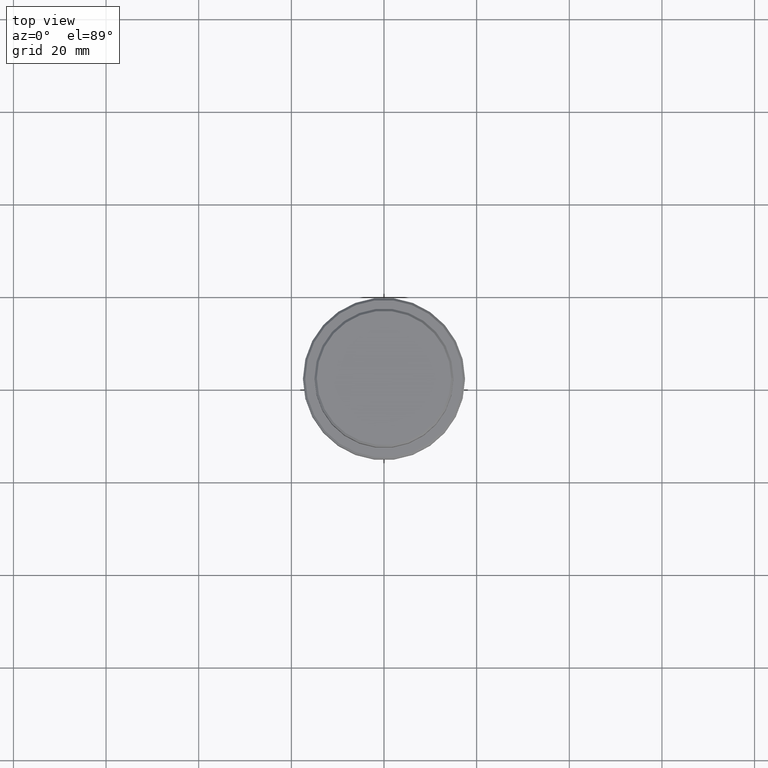
[diagram: clean part render]
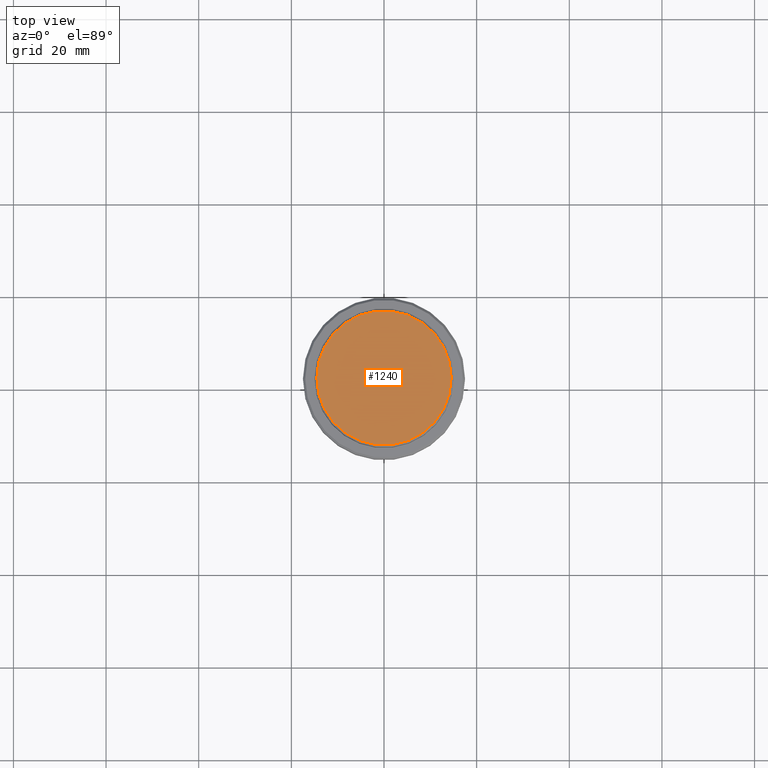
[diagram: same view with one face highlighted and labeled with its STEP entity id]
A machine part, top view. The second image highlights one B-rep face of the part: STEP entity #1240.
In plain terms, the highlighted planar face has unit normal (0, -0, 1).
Its self-contained STEP definition (entity closure, byte-faithful):
#3 = CARTESIAN_POINT ( 'NONE',  ( -14.49999999999999645, 0.000000000000000000, 0.000000000000000000 ) ) ;
#173 = ORIENTED_EDGE ( 'NONE', *, *, #457, .T. ) ;
#262 = CARTESIAN_POINT ( 'NONE',  ( 14.49999999999999645, 1.806354028742345802E-15, 0.000000000000000000 ) ) ;
#267 = CIRCLE ( 'NONE', #1263, 14.49999999999999645 ) ;
#273 = CARTESIAN_POINT ( 'NONE',  ( 0.000000000000000000, 0.000000000000000000, 0.000000000000000000 ) ) ;
#292 = AXIS2_PLACEMENT_3D ( 'NONE', #667, #1188, #1088 ) ;
#306 = CIRCLE ( 'NONE', #1375, 14.49999999999999645 ) ;
#325 = EDGE_CURVE ( 'NONE', #1281, #909, #306, .T. ) ;
#457 = EDGE_CURVE ( 'NONE', #909, #1281, #267, .T. ) ;
#631 = EDGE_LOOP ( 'NONE', ( #995, #173 ) ) ;
#667 = CARTESIAN_POINT ( 'NONE',  ( 0.000000000000000000, 0.000000000000000000, 0.000000000000000000 ) ) ;
#767 = FACE_OUTER_BOUND ( 'NONE', #631, .T. ) ;
#810 = DIRECTION ( 'NONE',  ( -0.000000000000000000, -0.000000000000000000, 1.000000000000000000 ) ) ;
#893 = DIRECTION ( 'NONE',  ( 1.000000000000000000, 0.000000000000000000, 0.000000000000000000 ) ) ;
#909 = VERTEX_POINT ( 'NONE', #262 ) ;
#995 = ORIENTED_EDGE ( 'NONE', *, *, #325, .T. ) ;
#1088 = DIRECTION ( 'NONE',  ( 1.000000000000000000, 0.000000000000000000, 0.000000000000000000 ) ) ;
#1091 = DIRECTION ( 'NONE',  ( 1.000000000000000000, 0.000000000000000000, 0.000000000000000000 ) ) ;
#1188 = DIRECTION ( 'NONE',  ( 0.000000000000000000, -0.000000000000000000, 1.000000000000000000 ) ) ;
#1240 = ADVANCED_FACE ( 'NONE', ( #767 ), #1292, .T. ) ;
#1263 = AXIS2_PLACEMENT_3D ( 'NONE', #273, #810, #893 ) ;
#1281 = VERTEX_POINT ( 'NONE', #3 ) ;
#1292 = PLANE ( 'NONE',  #292 ) ;
#1302 = DIRECTION ( 'NONE',  ( -0.000000000000000000, -0.000000000000000000, 1.000000000000000000 ) ) ;
#1312 = CARTESIAN_POINT ( 'NONE',  ( 0.000000000000000000, 0.000000000000000000, 0.000000000000000000 ) ) ;
#1375 = AXIS2_PLACEMENT_3D ( 'NONE', #1312, #1302, #1091 ) ;